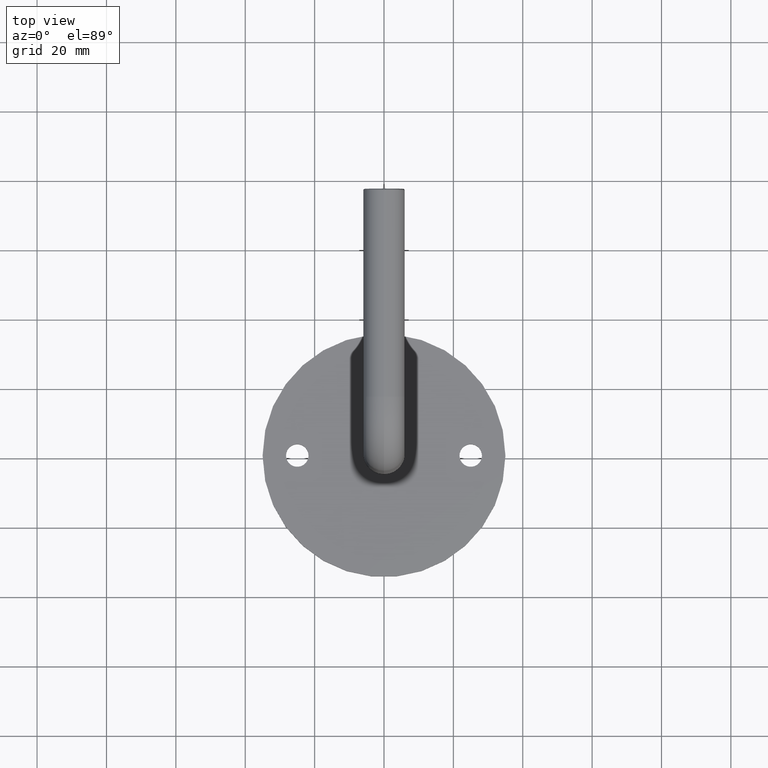
[diagram: clean part render]
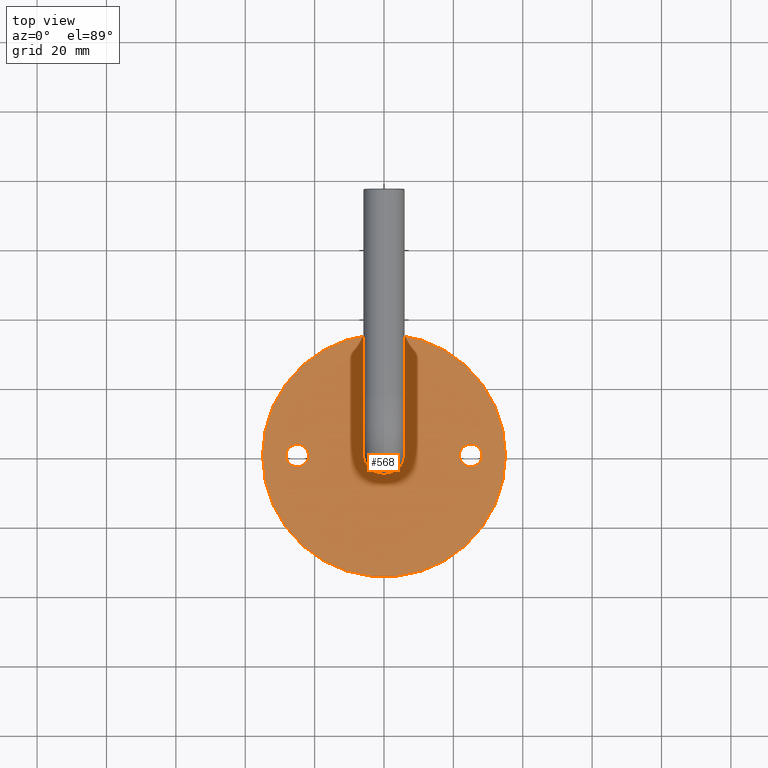
[diagram: same view with one face highlighted and labeled with its STEP entity id]
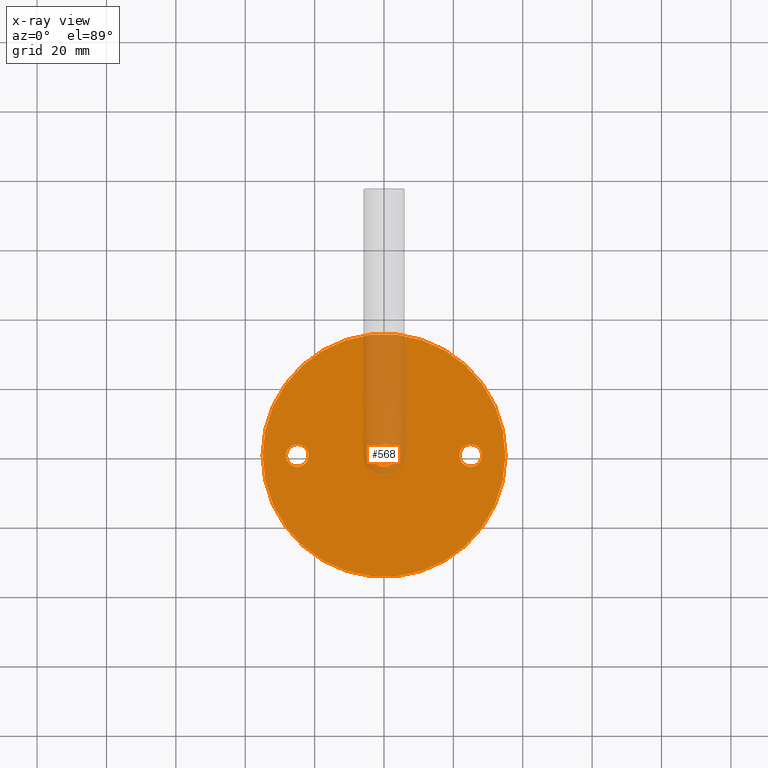
[diagram: x-ray of the same camera — body ghosted, the highlighted face saturated]
A machine part, top view. The second image highlights one B-rep face of the part: STEP entity #568.
The next image is the same camera in x-ray: the body ghosted, the highlighted face saturated — about 11% of this face is hidden behind the body in this view.
In plain terms, the highlighted planar face has unit normal (0, 0, 1).
Its self-contained STEP definition (entity closure, byte-faithful):
#132 = EDGE_CURVE ( 'NONE', #9118, #15312, #8060, .T. ) ;
#197 = VERTEX_POINT ( 'NONE', #8814 ) ;
#269 = ORIENTED_EDGE ( 'NONE', *, *, #1209, .T. ) ;
#322 = ORIENTED_EDGE ( 'NONE', *, *, #12388, .F. ) ;
#409 = VERTEX_POINT ( 'NONE', #13227 ) ;
#414 = DIRECTION ( 'NONE',  ( 1.000000000000000000, 0.000000000000000000, 0.000000000000000000 ) ) ;
#545 = AXIS2_PLACEMENT_3D ( 'NONE', #6149, #15620, #850 ) ;
#568 = ADVANCED_FACE ( 'NONE', ( #10832, #15493, #15276, #9348 ), #12294, .T. ) ;
#666 = CIRCLE ( 'NONE', #4001, 3.250000000000002665 ) ;
#761 = DIRECTION ( 'NONE',  ( 1.000000000000000000, 0.000000000000000000, 0.000000000000000000 ) ) ;
#850 = DIRECTION ( 'NONE',  ( 1.000000000000000000, 0.000000000000000000, 0.000000000000000000 ) ) ;
#1209 = EDGE_CURVE ( 'NONE', #11568, #197, #9993, .T. ) ;
#1290 = DIRECTION ( 'NONE',  ( 1.000000000000000000, 0.000000000000000000, -0.000000000000000000 ) ) ;
#1388 = ORIENTED_EDGE ( 'NONE', *, *, #1692, .F. ) ;
#1418 = CIRCLE ( 'NONE', #3932, 35.00000000000000711 ) ;
#1479 = DIRECTION ( 'NONE',  ( 1.000000000000000000, 0.000000000000000000, 0.000000000000000000 ) ) ;
#1692 = EDGE_CURVE ( 'NONE', #16593, #409, #13774, .T. ) ;
#1763 = EDGE_LOOP ( 'NONE', ( #322, #12284 ) ) ;
#1775 = CIRCLE ( 'NONE', #9906, 3.249999999999975131 ) ;
#1843 = DIRECTION ( 'NONE',  ( 0.000000000000000000, 0.000000000000000000, 1.000000000000000000 ) ) ;
#2255 = CARTESIAN_POINT ( 'NONE',  ( 0.000000000000000000, 0.000000000000000000, 3.999999999999996447 ) ) ;
#3801 = AXIS2_PLACEMENT_3D ( 'NONE', #16293, #4227, #1290 ) ;
#3932 = AXIS2_PLACEMENT_3D ( 'NONE', #9773, #5852, #15320 ) ;
#3991 = ORIENTED_EDGE ( 'NONE', *, *, #15340, .T. ) ;
#4001 = AXIS2_PLACEMENT_3D ( 'NONE', #16677, #1843, #6008 ) ;
#4035 = AXIS2_PLACEMENT_3D ( 'NONE', #8838, #15594, #761 ) ;
#4091 = EDGE_LOOP ( 'NONE', ( #269, #8901 ) ) ;
#4227 = DIRECTION ( 'NONE',  ( 0.000000000000000000, 0.000000000000000000, 1.000000000000000000 ) ) ;
#4394 = EDGE_CURVE ( 'NONE', #197, #11568, #1418, .T. ) ;
#5303 = DIRECTION ( 'NONE',  ( 0.000000000000000000, 0.000000000000000000, 1.000000000000000000 ) ) ;
#5425 = CARTESIAN_POINT ( 'NONE',  ( -35.00000000000000711, 0.000000000000000000, 4.000000000000000000 ) ) ;
#5480 = CARTESIAN_POINT ( 'NONE',  ( 25.00000000000000000, 6.123233995736766085E-15, 4.000000000000000000 ) ) ;
#5539 = CARTESIAN_POINT ( 'NONE',  ( 3.250000000000000444, 5.817072295949928412E-16, 3.999999999999996447 ) ) ;
#5587 = VERTEX_POINT ( 'NONE', #5539 ) ;
#5722 = EDGE_CURVE ( 'NONE', #5587, #11087, #8129, .T. ) ;
#5852 = DIRECTION ( 'NONE',  ( 0.000000000000000000, 0.000000000000000000, 1.000000000000000000 ) ) ;
#5983 = DIRECTION ( 'NONE',  ( 0.000000000000000000, 0.000000000000000000, 1.000000000000000000 ) ) ;
#6008 = DIRECTION ( 'NONE',  ( 1.000000000000000000, 0.000000000000000000, 0.000000000000000000 ) ) ;
#6149 = CARTESIAN_POINT ( 'NONE',  ( -25.00000000000000000, 0.000000000000000000, 4.000000000000000000 ) ) ;
#6158 = CARTESIAN_POINT ( 'NONE',  ( 28.24999999999997513, 6.521244205459652950E-15, 4.000000000000000000 ) ) ;
#6516 = AXIS2_PLACEMENT_3D ( 'NONE', #2255, #14184, #15489 ) ;
#6607 = AXIS2_PLACEMENT_3D ( 'NONE', #9499, #6988, #16485 ) ;
#6988 = DIRECTION ( 'NONE',  ( -0.000000000000000000, -0.000000000000000000, -1.000000000000000000 ) ) ;
#7226 = CARTESIAN_POINT ( 'NONE',  ( -21.75000000000000000, 3.980102097228905134E-16, 4.000000000000000000 ) ) ;
#7662 = EDGE_LOOP ( 'NONE', ( #3991, #16216 ) ) ;
#8060 = CIRCLE ( 'NONE', #545, 3.250000000000002665 ) ;
#8129 = CIRCLE ( 'NONE', #6607, 3.250000000000000444 ) ;
#8814 = CARTESIAN_POINT ( 'NONE',  ( 35.00000000000000711, 4.286263797015737285E-15, 4.000000000000000000 ) ) ;
#8838 = CARTESIAN_POINT ( 'NONE',  ( 25.00000000000000000, 6.123233995736766085E-15, 4.000000000000000000 ) ) ;
#8901 = ORIENTED_EDGE ( 'NONE', *, *, #4394, .T. ) ;
#9118 = VERTEX_POINT ( 'NONE', #7226 ) ;
#9348 = FACE_BOUND ( 'NONE', #14612, .T. ) ;
#9380 = ORIENTED_EDGE ( 'NONE', *, *, #10426, .F. ) ;
#9499 = CARTESIAN_POINT ( 'NONE',  ( 0.000000000000000000, 0.000000000000000000, 3.999999999999996447 ) ) ;
#9773 = CARTESIAN_POINT ( 'NONE',  ( 0.000000000000000000, 0.000000000000000000, 4.000000000000000000 ) ) ;
#9906 = AXIS2_PLACEMENT_3D ( 'NONE', #5480, #5303, #1479 ) ;
#9993 = CIRCLE ( 'NONE', #11414, 35.00000000000000711 ) ;
#10426 = EDGE_CURVE ( 'NONE', #409, #16593, #1775, .T. ) ;
#10832 = FACE_BOUND ( 'NONE', #7662, .T. ) ;
#11087 = VERTEX_POINT ( 'NONE', #14278 ) ;
#11222 = CARTESIAN_POINT ( 'NONE',  ( 0.000000000000000000, 0.000000000000000000, 4.000000000000000000 ) ) ;
#11414 = AXIS2_PLACEMENT_3D ( 'NONE', #11222, #5983, #414 ) ;
#11568 = VERTEX_POINT ( 'NONE', #5425 ) ;
#12284 = ORIENTED_EDGE ( 'NONE', *, *, #132, .F. ) ;
#12294 = PLANE ( 'NONE',  #3801 ) ;
#12388 = EDGE_CURVE ( 'NONE', #15312, #9118, #666, .T. ) ;
#13227 = CARTESIAN_POINT ( 'NONE',  ( 21.75000000000002487, 6.123233995736766085E-15, 4.000000000000000000 ) ) ;
#13774 = CIRCLE ( 'NONE', #4035, 3.249999999999975131 ) ;
#14184 = DIRECTION ( 'NONE',  ( -0.000000000000000000, -0.000000000000000000, -1.000000000000000000 ) ) ;
#14241 = CARTESIAN_POINT ( 'NONE',  ( -28.25000000000000355, 0.000000000000000000, 4.000000000000000000 ) ) ;
#14278 = CARTESIAN_POINT ( 'NONE',  ( -3.250000000000000444, 0.000000000000000000, 3.999999999999996447 ) ) ;
#14612 = EDGE_LOOP ( 'NONE', ( #9380, #1388 ) ) ;
#15276 = FACE_OUTER_BOUND ( 'NONE', #4091, .T. ) ;
#15312 = VERTEX_POINT ( 'NONE', #14241 ) ;
#15320 = DIRECTION ( 'NONE',  ( 1.000000000000000000, 0.000000000000000000, 0.000000000000000000 ) ) ;
#15340 = EDGE_CURVE ( 'NONE', #11087, #5587, #16911, .T. ) ;
#15489 = DIRECTION ( 'NONE',  ( -1.000000000000000000, 0.000000000000000000, 0.000000000000000000 ) ) ;
#15493 = FACE_BOUND ( 'NONE', #1763, .T. ) ;
#15594 = DIRECTION ( 'NONE',  ( 0.000000000000000000, 0.000000000000000000, 1.000000000000000000 ) ) ;
#15620 = DIRECTION ( 'NONE',  ( 0.000000000000000000, 0.000000000000000000, 1.000000000000000000 ) ) ;
#16216 = ORIENTED_EDGE ( 'NONE', *, *, #5722, .T. ) ;
#16293 = CARTESIAN_POINT ( 'NONE',  ( 0.000000000000000000, 0.000000000000000000, 4.000000000000000000 ) ) ;
#16485 = DIRECTION ( 'NONE',  ( -1.000000000000000000, 0.000000000000000000, 0.000000000000000000 ) ) ;
#16593 = VERTEX_POINT ( 'NONE', #6158 ) ;
#16677 = CARTESIAN_POINT ( 'NONE',  ( -25.00000000000000000, 0.000000000000000000, 4.000000000000000000 ) ) ;
#16911 = CIRCLE ( 'NONE', #6516, 3.250000000000000444 ) ;